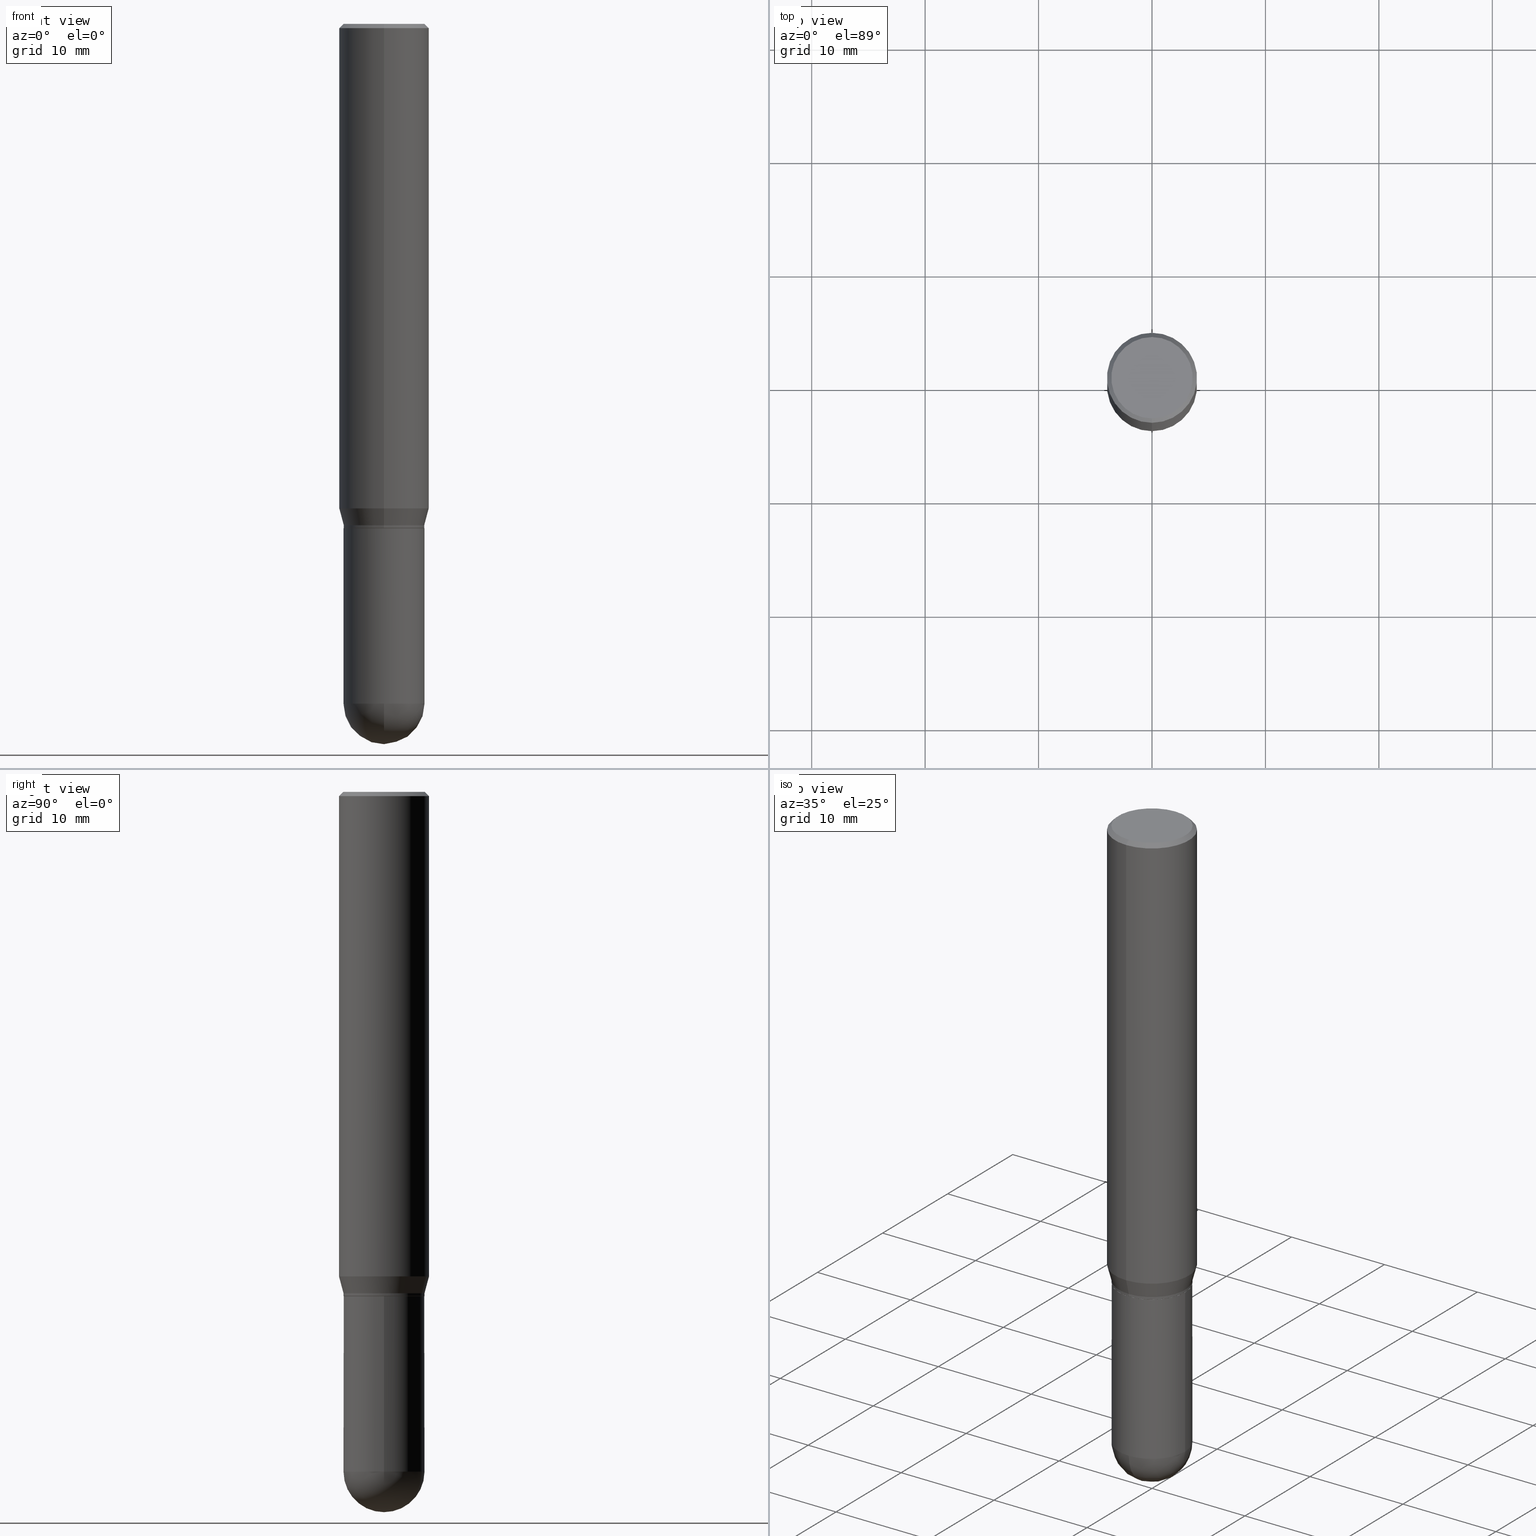
[diagram: canonical four-view strip — front | top / right | iso, engineering-drawing reading convention]
A machine part, canonical four-view strip (front | top / right | iso — engineering-drawing reading convention). The complete STEP part file that produces these views, byte-faithful:
ISO-10303-21;
HEADER;
FILE_DESCRIPTION (( 'STEP AP203' ),
    '1' );
FILE_NAME ('30868.STEP',
    '2024-03-08T15:40:18',
    ( '' ),
    ( '' ),
    'SwSTEP 2.0',
    'SolidWorks 2023',
    '' );
FILE_SCHEMA (( 'CONFIG_CONTROL_DESIGN' ));
ENDSEC;

DATA;
#1 = CARTESIAN_POINT ( 'NONE',  ( 4.112073964147616750E-29, -5.871553085609828097E-15, -1.681593404861546848 ) ) ;
#2 = ADVANCED_FACE ( 'NONE', ( #369 ), #479, .T. ) ;
#3 = ORIENTED_EDGE ( 'NONE', *, *, #374, .F. ) ;
#4 = DIRECTION ( 'NONE',  ( -4.937700262164631661E-15, -0.7071067811865571207, 0.7071067811865379138 ) ) ;
#5 = CIRCLE ( 'NONE', #304, 0.1412499999999999867 ) ;
#6 = FACE_OUTER_BOUND ( 'NONE', #194, .T. ) ;
#7 = CONICAL_SURFACE ( 'NONE', #449, 0.1401000000000000023, 0.7853981633974653764 ) ;
#8 = LENGTH_MEASURE_WITH_UNIT ( LENGTH_MEASURE( 0.02539999999999999897 ), #258 );
#9 = DIRECTION ( 'NONE',  ( -2.445343774695751829E-29, 3.491660391052294645E-15, 1.000000000000000000 ) ) ;
#10 = ADVANCED_FACE ( 'NONE', ( #12 ), #14, .F. ) ;
#11 = PERSON_AND_ORGANIZATION ( #113, #141 ) ;
#12 = FACE_OUTER_BOUND ( 'NONE', #267, .T. ) ;
#13 = PERSON_AND_ORGANIZATION ( #113, #141 ) ;
#14 = PLANE ( 'NONE',  #162 ) ;
#15 = AXIS2_PLACEMENT_3D ( 'NONE', #471, #442, #95 ) ;
#16 = AXIS2_PLACEMENT_3D ( 'NONE', #355, #509, #238 ) ;
#17 = DESIGN_CONTEXT ( 'detailed design', #508, 'design' ) ;
#18 = ORIENTED_EDGE ( 'NONE', *, *, #67, .F. ) ;
#19 = DIRECTION ( 'NONE',  ( -2.445343774695752109E-29, 3.491660391052294645E-15, 1.000000000000000000 ) ) ;
#20 = ORIENTED_EDGE ( 'NONE', *, *, #67, .T. ) ;
#21 = EDGE_CURVE ( 'NONE', #259, #359, #60, .T. ) ;
#22 = ORIENTED_EDGE ( 'NONE', *, *, #417, .F. ) ;
#23 = DIRECTION ( 'NONE',  ( -2.445343774695752109E-29, 3.491660391052294645E-15, 1.000000000000000000 ) ) ;
#24 = CARTESIAN_POINT ( 'NONE',  ( -1.071952812151801215E-15, -0.1562500000000000833, -0.01499999999999942178 ) ) ;
#25 = EDGE_LOOP ( 'NONE', ( #430, #20 ) ) ;
#26 = DIRECTION ( 'NONE',  ( -2.445343774695752109E-29, 3.491660391052294645E-15, 1.000000000000000000 ) ) ;
#27 = ADVANCED_FACE ( 'NONE', ( #182 ), #410, .F. ) ;
#28 = CARTESIAN_POINT ( 'NONE',  ( 3.668015662043620053E-31, -5.237490586578430900E-17, -0.01499999999999996822 ) ) ;
#29 = CARTESIAN_POINT ( 'NONE',  ( 3.668015662043620053E-31, -5.237490586578430900E-17, -0.01499999999999996822 ) ) ;
#30 = AXIS2_PLACEMENT_3D ( 'NONE', #311, #458, #114 ) ;
#31 = AXIS2_PLACEMENT_3D ( 'NONE', #297, #483, #338 ) ;
#32 = EDGE_CURVE ( 'NONE', #144, #89, #224, .T. ) ;
#33 = DIRECTION ( 'NONE',  ( -2.445343774695752109E-29, 3.491660391052294645E-15, 1.000000000000000000 ) ) ;
#34 = CARTESIAN_POINT ( 'NONE',  ( 4.279351605717566121E-29, -6.110405684341516320E-15, -1.750000000000000222 ) ) ;
#35 = LINE ( 'NONE', #506, #58 ) ;
#36 = EDGE_CURVE ( 'NONE', #42, #281, #412, .T. ) ;
#37 = ORIENTED_EDGE ( 'NONE', *, *, #344, .T. ) ;
#38 = CLOSED_SHELL ( 'NONE', ( #414, #318, #210, #354, #106, #218, #129, #177, #27, #10, #2, #161 ) ) ;
#39 = CARTESIAN_POINT ( 'NONE',  ( 9.954703727999429753E-16, 0.1400999999999938961, -1.750000000000000666 ) ) ;
#40 = ORIENTED_EDGE ( 'NONE', *, *, #201, .F. ) ;
#41 = EDGE_CURVE ( 'NONE', #245, #285, #388, .T. ) ;
#42 = VERTEX_POINT ( 'NONE', #407 ) ;
#43 = DIRECTION ( 'NONE',  ( -6.982962677686266711E-15, -1.000000000000000000, 3.885985766236507752E-15 ) ) ;
#44 = ORIENTED_EDGE ( 'NONE', *, *, #459, .F. ) ;
#45 = DIRECTION ( 'NONE',  ( 1.839019923739597160E-15, 0.2588190451025245142, 0.9659258262890673130 ) ) ;
#46 = VERTEX_POINT ( 'NONE', #131 ) ;
#47 = DIRECTION ( 'NONE',  ( -1.000000000000000000, 6.982962677686265922E-15, -4.876176775795935793E-29 ) ) ;
#48 = AXIS2_PLACEMENT_3D ( 'NONE', #394, #512, #464 ) ;
#49 = VERTEX_POINT ( 'NONE', #50 ) ;
#50 = CARTESIAN_POINT ( 'NONE',  ( 1.110223024625197561E-15, 0.1562499999999999445, -0.01500000000000051466 ) ) ;
#51 = ORIENTED_EDGE ( 'NONE', *, *, #329, .F. ) ;
#52 = APPROVAL_ROLE ( '' ) ;
#53 = MANIFOLD_SOLID_BREP ( 'Body-Move/Copy2[1]', #109 ) ;
#54 = DIRECTION ( 'NONE',  ( 2.445343774695751829E-29, -3.491660391052294645E-15, -1.000000000000000000 ) ) ;
#55 = APPROVAL_ROLE ( '' ) ;
#56 = DIRECTION ( 'NONE',  ( -6.982962677686265133E-15, -1.000000000000000000, 3.496765431890256920E-15 ) ) ;
#57 = CIRCLE ( 'NONE', #80, 0.1401000000000000023 ) ;
#58 = VECTOR ( 'NONE', #203, 39.37007874015748143 ) ;
#59 = DIRECTION ( 'NONE',  ( -6.982962677686266711E-15, -1.000000000000000000, 3.885985766236507752E-15 ) ) ;
#60 = CIRCLE ( 'NONE', #351, 0.1562500000000000000 ) ;
#61 = AXIS2_PLACEMENT_3D ( 'NONE', #242, #117, #43 ) ;
#62 = DIRECTION ( 'NONE',  ( -2.445343774695752109E-29, 3.491660391052294645E-15, 1.000000000000000000 ) ) ;
#63 = VERTEX_POINT ( 'NONE', #215 ) ;
#64 = LINE ( 'NONE', #66, #466 ) ;
#65 = EDGE_LOOP ( 'NONE', ( #415, #111, #441, #257 ) ) ;
#66 = CARTESIAN_POINT ( 'NONE',  ( -9.818045524826459157E-16, -0.1406000000000059980, -1.739999999999999547 ) ) ;
#67 = EDGE_CURVE ( 'NONE', #248, #235, #5, .T. ) ;
#68 = CARTESIAN_POINT ( 'NONE',  ( -0.1406000000000000028, -6.174923620442310269E-15, -1.750000000000000222 ) ) ;
#69 = EDGE_CURVE ( 'NONE', #235, #248, #493, .T. ) ;
#70 = MANIFOLD_SOLID_BREP ( 'Body-Move/Copy2[2]', #38 ) ;
#71 = DIRECTION ( 'NONE',  ( 6.982962677686265133E-15, 1.000000000000000000, -3.496765431890256920E-15 ) ) ;
#72 = DIRECTION ( 'NONE',  ( -2.445468806185136877E-29, 3.491481338843145188E-15, 1.000000000000000000 ) ) ;
#73 = CIRCLE ( 'NONE', #30, 0.1562500000000000000 ) ;
#74 = AXIS2_PLACEMENT_3D ( 'NONE', #1, #286, #83 ) ;
#75 = LINE ( 'NONE', #39, #246 ) ;
#76 = DIRECTION ( 'NONE',  ( -1.000000000000000000, 7.105427357601001070E-15, -4.926315508542082329E-29 ) ) ;
#77 = DIRECTION ( 'NONE',  ( -2.445343774695752109E-29, 3.491660391052294645E-15, 1.000000000000000000 ) ) ;
#78 = ADVANCED_FACE ( 'NONE', ( #221 ), #372, .T. ) ;
#79 = ORIENTED_EDGE ( 'NONE', *, *, #507, .T. ) ;
#80 = AXIS2_PLACEMENT_3D ( 'NONE', #227, #62, #183 ) ;
#81 = VECTOR ( 'NONE', #353, 39.37007874015748143 ) ;
#82 = AXIS2_PLACEMENT_3D ( 'NONE', #145, #494, #107 ) ;
#83 = DIRECTION ( 'NONE',  ( -6.982962677686265133E-15, -1.000000000000000000, 3.496765431890256920E-15 ) ) ;
#84 = ORIENTED_EDGE ( 'NONE', *, *, #507, .F. ) ;
#85 = ORIENTED_EDGE ( 'NONE', *, *, #120, .T. ) ;
#86 = APPLICATION_PROTOCOL_DEFINITION ( 'international standard', 'config_control_design', 1994, #366 ) ;
#87 = PLANE ( 'NONE',  #261 ) ;
#88 = CC_DESIGN_PERSON_AND_ORGANIZATION_ASSIGNMENT ( #211, #360, ( #204 ) ) ;
#89 = VERTEX_POINT ( 'NONE', #225 ) ;
#90 = ORIENTED_EDGE ( 'NONE', *, *, #400, .F. ) ;
#91 = CARTESIAN_POINT ( 'NONE',  ( 4.112073964147616750E-29, -5.871553085609828097E-15, -1.681593404861546848 ) ) ;
#92 = DIRECTION ( 'NONE',  ( -6.982962677686265922E-15, -1.000000000000000000, 3.491660391052294645E-15 ) ) ;
#93 = APPROVAL_STATUS ( 'not_yet_approved' ) ;
#94 = ORIENTED_EDGE ( 'NONE', *, *, #201, .T. ) ;
#95 = DIRECTION ( 'NONE',  ( -6.982962677686265922E-15, -1.000000000000000000, 3.899854380677035588E-15 ) ) ;
#96 = LINE ( 'NONE', #214, #477 ) ;
#97 = FACE_OUTER_BOUND ( 'NONE', #342, .T. ) ;
#98 = VECTOR ( 'NONE', #151, 39.37007874015748143 ) ;
#99 = LINE ( 'NONE', #262, #305 ) ;
#100 = AXIS2_PLACEMENT_3D ( 'NONE', #405, #473, #362 ) ;
#101 = CIRCLE ( 'NONE', #387, 0.1405999999999999195 ) ;
#102 = APPROVAL_STATUS ( 'not_yet_approved' ) ;
#103 = FACE_OUTER_BOUND ( 'NONE', #160, .T. ) ;
#104 = VERTEX_POINT ( 'NONE', #292 ) ;
#105 = DIRECTION ( 'NONE',  ( -6.982962677686266711E-15, -1.000000000000000000, 3.885985766236507752E-15 ) ) ;
#106 = ADVANCED_FACE ( 'NONE', ( #128 ), #233, .T. ) ;
#107 = DIRECTION ( 'NONE',  ( -6.982962677686266711E-15, -1.000000000000000000, 3.491660391052295040E-15 ) ) ;
#108 = AXIS2_PLACEMENT_3D ( 'NONE', #130, #291, #438 ) ;
#109 = CLOSED_SHELL ( 'NONE', ( #78, #475, #159, #491, #390 ) ) ;
#110 = AXIS2_PLACEMENT_3D ( 'NONE', #436, #137, #59 ) ;
#111 = ORIENTED_EDGE ( 'NONE', *, *, #408, .T. ) ;
#112 = ORIENTED_EDGE ( 'NONE', *, *, #322, .F. ) ;
#113 = PERSON ( 'UNSPECIFIED', 'UNSPECIFIED', 'UNSPECIFIED', ('UNSPECIFIED'), ('UNSPECIFIED'), ('UNSPECIFIED') ) ;
#114 = DIRECTION ( 'NONE',  ( -6.982962677686265133E-15, -1.000000000000000000, 3.496765431890256920E-15 ) ) ;
#115 = ORIENTED_EDGE ( 'NONE', *, *, #417, .T. ) ;
#116 = DIRECTION ( 'NONE',  ( -6.982962677686265133E-15, -1.000000000000000000, 3.885985766236507752E-15 ) ) ;
#117 = DIRECTION ( 'NONE',  ( -2.445343774695752109E-29, 3.491660391052294645E-15, 1.000000000000000000 ) ) ;
#118 = LINE ( 'NONE', #460, #140 ) ;
#119 = EDGE_LOOP ( 'NONE', ( #392, #320 ) ) ;
#120 = EDGE_CURVE ( 'NONE', #241, #42, #237, .T. ) ;
#121 = CARTESIAN_POINT ( 'NONE',  ( 4.278128933830218313E-29, -6.108659854145990400E-15, -1.749500000000000277 ) ) ;
#122 = FACE_OUTER_BOUND ( 'NONE', #381, .T. ) ;
#123 = AXIS2_PLACEMENT_3D ( 'NONE', #378, #418, #452 ) ;
#124 = LOCAL_TIME ( 10, 40, 18.00000000000000000, #171 ) ;
#125 = AXIS2_PLACEMENT_3D ( 'NONE', #29, #187, #71 ) ;
#126 = PERSON_AND_ORGANIZATION ( #113, #141 ) ;
#127 =( CONVERSION_BASED_UNIT ( 'INCH', #8 ) LENGTH_UNIT ( ) NAMED_UNIT ( #368 ) );
#128 = FACE_OUTER_BOUND ( 'NONE', #294, .T. ) ;
#129 = ADVANCED_FACE ( 'NONE', ( #97 ), #212, .T. ) ;
#130 = CARTESIAN_POINT ( 'NONE',  ( 0.000000000000000000, 0.000000000000000000, 0.000000000000000000 ) ) ;
#131 = CARTESIAN_POINT ( 'NONE',  ( 0.1406000000000000583, -8.155751259403701439E-15, -2.359399999999999942 ) ) ;
#132 = ORIENTED_EDGE ( 'NONE', *, *, #316, .F. ) ;
#133 = CC_DESIGN_APPROVAL ( #420, ( #314 ) ) ;
#134 = CALENDAR_DATE ( 2024, 8, 3 ) ;
#135 = CARTESIAN_POINT ( 'NONE',  ( -7.821174033303123404E-46, 1.116770732450859065E-31, 3.198394481068915622E-17 ) ) ;
#136 = PERSON_AND_ORGANIZATION ( #113, #141 ) ;
#137 = DIRECTION ( 'NONE',  ( -2.445343774695752109E-29, 3.491660391052294645E-15, 1.000000000000000000 ) ) ;
#138 = ORIENTED_EDGE ( 'NONE', *, *, #308, .T. ) ;
#139 = CARTESIAN_POINT ( 'NONE',  ( 9.863434782231850151E-16, 0.1412499999999999867, -4.772050578307920773E-16 ) ) ;
#140 = VECTOR ( 'NONE', #72, 39.37007874015748143 ) ;
#141 = ORGANIZATION ( 'UNSPECIFIED', 'UNSPECIFIED', '' ) ;
#142 = DIRECTION ( 'NONE',  ( -1.807323732225326984E-15, -0.2588190451025177419, 0.9659258262890690894 ) ) ;
#143 = CC_DESIGN_PERSON_AND_ORGANIZATION_ASSIGNMENT ( #13, #325, ( #495 ) ) ;
#144 = VERTEX_POINT ( 'NONE', #252 ) ;
#145 = CARTESIAN_POINT ( 'NONE',  ( 0.000000000000000000, 0.000000000000000000, 0.000000000000000000 ) ) ;
#146 = ORIENTED_EDGE ( 'NONE', *, *, #316, .T. ) ;
#147 = CALENDAR_DATE ( 2024, 8, 3 ) ;
#148 = CARTESIAN_POINT ( 'NONE',  ( 1.038715698305832292E-15, 0.1412499999999999867, -4.612130854254474684E-16 ) ) ;
#149 = ORIENTED_EDGE ( 'NONE', *, *, #383, .T. ) ;
#150 = CIRCLE ( 'NONE', #61, 0.1405999999999999195 ) ;
#151 = DIRECTION ( 'NONE',  ( -2.445343774695752109E-29, 3.491660391052294645E-15, 1.000000000000000000 ) ) ;
#152 = VECTOR ( 'NONE', #309, 39.37007874015748143 ) ;
#153 = ORIENTED_EDGE ( 'NONE', *, *, #41, .F. ) ;
#154 = CARTESIAN_POINT ( 'NONE',  ( 0.000000000000000000, 0.000000000000000000, 0.000000000000000000 ) ) ;
#155 = CYLINDRICAL_SURFACE ( 'NONE', #16, 0.1406000000000000028 ) ;
#156 = EDGE_LOOP ( 'NONE', ( #198, #270, #496, #386 ) ) ;
#157 = CYLINDRICAL_SURFACE ( 'NONE', #303, 0.1405999999999999195 ) ;
#158 = AXIS2_PLACEMENT_3D ( 'NONE', #164, #323, #283 ) ;
#159 = ADVANCED_FACE ( 'NONE', ( #486 ), #87, .F. ) ;
#160 = EDGE_LOOP ( 'NONE', ( #456, #409, #313, #451 ) ) ;
#161 = ADVANCED_FACE ( 'NONE', ( #6 ), #172, .T. ) ;
#162 = AXIS2_PLACEMENT_3D ( 'NONE', #176, #9, #92 ) ;
#163 = DIRECTION ( 'NONE',  ( -2.445343774695752109E-29, 3.491660391052294645E-15, 1.000000000000000000 ) ) ;
#164 = CARTESIAN_POINT ( 'NONE',  ( 5.757815463287349061E-29, -8.255019604862529009E-15, -2.359399999999999942 ) ) ;
#165 = EDGE_LOOP ( 'NONE', ( #189, #207, #263, #115 ) ) ;
#166 = EDGE_CURVE ( 'NONE', #46, #245, #416, .T. ) ;
#167 = CIRCLE ( 'NONE', #287, 0.1401000000000000023 ) ;
#168 = CC_DESIGN_APPROVAL ( #199, ( #419 ) ) ;
#169 = AXIS2_PLACEMENT_3D ( 'NONE', #174, #333, #295 ) ;
#170 = AXIS2_PLACEMENT_3D ( 'NONE', #181, #365, #439 ) ;
#171 = COORDINATED_UNIVERSAL_TIME_OFFSET ( 5, 0, .BEHIND. ) ;
#172 = CYLINDRICAL_SURFACE ( 'NONE', #82, 0.1405999999999999195 ) ;
#173 = ORIENTED_EDGE ( 'NONE', *, *, #510, .T. ) ;
#174 = CARTESIAN_POINT ( 'NONE',  ( 4.279570410823989044E-29, -6.110092342975505460E-15, -1.750000000000000222 ) ) ;
#175 = APPROVAL_STATUS ( 'not_yet_approved' ) ;
#176 = CARTESIAN_POINT ( 'NONE',  ( 4.279351605717566121E-29, -6.110405684341516320E-15, -1.750000000000000222 ) ) ;
#177 = ADVANCED_FACE ( 'NONE', ( #307 ), #302, .T. ) ;
#178 = APPROVAL_DATE_TIME ( #370, #199 ) ;
#179 = EDGE_LOOP ( 'NONE', ( #90, #149, #173, #44 ) ) ;
#180 = AXIS2_PLACEMENT_3D ( 'NONE', #154, #77, #389 ) ;
#181 = CARTESIAN_POINT ( 'NONE',  ( 0.000000000000000000, 0.000000000000000000, 0.000000000000000000 ) ) ;
#182 = FACE_OUTER_BOUND ( 'NONE', #25, .T. ) ;
#183 = DIRECTION ( 'NONE',  ( -6.982962677686265922E-15, -1.000000000000000000, 3.899854380677035588E-15 ) ) ;
#184 = EDGE_LOOP ( 'NONE', ( #437, #373, #3, #275 ) ) ;
#185 = APPROVAL_PERSON_ORGANIZATION ( #379, #282, #347 ) ;
#186 = ORIENTED_EDGE ( 'NONE', *, *, #448, .F. ) ;
#187 = DIRECTION ( 'NONE',  ( 2.445343774695752109E-29, -3.491660391052294645E-15, -1.000000000000000000 ) ) ;
#188 = EDGE_CURVE ( 'NONE', #144, #273, #421, .T. ) ;
#189 = ORIENTED_EDGE ( 'NONE', *, *, #255, .F. ) ;
#190 = PRODUCT_DEFINITION_SHAPE ( 'NONE', 'NONE',  #314 ) ;
#191 = CARTESIAN_POINT ( 'NONE',  ( 0.1406000000000000028, -7.091896895458194566E-15, -1.750000000000000222 ) ) ;
#192 = ORIENTED_EDGE ( 'NONE', *, *, #501, .F. ) ;
#193 = DIRECTION ( 'NONE',  ( 6.982962677686265133E-15, 1.000000000000000000, -3.496765431890256920E-15 ) ) ;
#194 = EDGE_LOOP ( 'NONE', ( #186, #209, #453, #132 ) ) ;
#195 = DIRECTION ( 'NONE',  ( 1.000000000000000000, -6.982962677686270655E-15, 0.000000000000000000 ) ) ;
#196 = AXIS2_PLACEMENT_3D ( 'NONE', #380, #382, #105 ) ;
#197 = CARTESIAN_POINT ( 'NONE',  ( -1.091087918388437956E-15, -0.1562500000000058842, -1.681593404861546404 ) ) ;
#198 = ORIENTED_EDGE ( 'NONE', *, *, #501, .T. ) ;
#199 = APPROVAL ( #93, 'UNSPECIFIED' ) ;
#200 = CARTESIAN_POINT ( 'NONE',  ( 5.757815463287349061E-29, -8.255019604862529009E-15, -2.359399999999999942 ) ) ;
#201 = EDGE_CURVE ( 'NONE', #46, #42, #222, .T. ) ;
#202 = ORIENTED_EDGE ( 'NONE', *, *, #228, .T. ) ;
#203 = DIRECTION ( 'NONE',  ( -2.445343774695752109E-29, 3.491660391052294645E-15, 1.000000000000000000 ) ) ;
#204 = SECURITY_CLASSIFICATION ( '', '', #398 ) ;
#205 = FACE_OUTER_BOUND ( 'NONE', #65, .T. ) ;
#206 = CC_DESIGN_DATE_AND_TIME_ASSIGNMENT ( #406, #251, ( #314 ) ) ;
#207 = ORIENTED_EDGE ( 'NONE', *, *, #69, .F. ) ;
#208 = LINE ( 'NONE', #440, #356 ) ;
#209 = ORIENTED_EDGE ( 'NONE', *, *, #459, .T. ) ;
#210 = ADVANCED_FACE ( 'NONE', ( #229 ), #336, .T. ) ;
#211 = PERSON_AND_ORGANIZATION ( #113, #141 ) ;
#212 = CYLINDRICAL_SURFACE ( 'NONE', #480, 0.1562500000000000000 ) ;
#213 = EDGE_LOOP ( 'NONE', ( #485, #349, #284, #469, #319 ) ) ;
#214 = CARTESIAN_POINT ( 'NONE',  ( -9.783130711438031058E-16, -0.1401000000000061085, -1.749999999999999556 ) ) ;
#215 = CARTESIAN_POINT ( 'NONE',  ( 9.972467296393428329E-16, 0.1400999999999938961, -1.750000000000000666 ) ) ;
#216 = APPROVAL_DATE_TIME ( #476, #420 ) ;
#217 = DIRECTION ( 'NONE',  ( -2.445343774695752109E-29, 3.491660391052294645E-15, 1.000000000000000000 ) ) ;
#218 = ADVANCED_FACE ( 'NONE', ( #498 ), #361, .T. ) ;
#219 = CALENDAR_DATE ( 2024, 8, 3 ) ;
#220 = ORIENTED_EDGE ( 'NONE', *, *, #310, .T. ) ;
#221 = FACE_OUTER_BOUND ( 'NONE', #488, .T. ) ;
#222 = CIRCLE ( 'NONE', #123, 0.1406000000000000305 ) ;
#223 = CIRCLE ( 'NONE', #511, 0.1405999999999999195 ) ;
#224 = CIRCLE ( 'NONE', #31, 0.1405999999999999195 ) ;
#225 = CARTESIAN_POINT ( 'NONE',  ( 9.990230864787432822E-16, 0.1405999999999938410, -1.749500000000000721 ) ) ;
#226 = APPROVAL_DATE_TIME ( #454, #282 ) ;
#227 = CARTESIAN_POINT ( 'NONE',  ( 4.279351605717566121E-29, -6.110405684341516320E-15, -1.750000000000000222 ) ) ;
#228 = EDGE_CURVE ( 'NONE', #273, #359, #64, .T. ) ;
#229 = FACE_OUTER_BOUND ( 'NONE', #396, .T. ) ;
#230 = CARTESIAN_POINT ( 'NONE',  ( 0.1406000000000000028, -9.818045524826893030E-16, 6.855904546769086274E-30 ) ) ;
#231 = CARTESIAN_POINT ( 'NONE',  ( 4.279570410823989044E-29, -6.110092342975505460E-15, -1.750000000000000222 ) ) ;
#232 = DIRECTION ( 'NONE',  ( -2.445468806185136597E-29, 3.491481338843145583E-15, 1.000000000000000000 ) ) ;
#233 = CONICAL_SURFACE ( 'NONE', #110, 0.1405999999999999195, 0.2617993877991497964 ) ;
#234 = CARTESIAN_POINT ( 'NONE',  ( 9.990230864787002893E-16, 0.1405999999999999195, -4.909274509819523981E-16 ) ) ;
#235 = VERTEX_POINT ( 'NONE', #148 ) ;
#236 = LOCAL_TIME ( 10, 40, 18.00000000000000000, #367 ) ;
#237 = CIRCLE ( 'NONE', #395, 0.1406000000000000860 ) ;
#238 = DIRECTION ( 'NONE',  ( 1.000000000000000000, -6.982962677686268288E-15, 4.876176775795936353E-29 ) ) ;
#239 = ORIENTED_EDGE ( 'NONE', *, *, #383, .F. ) ;
#240 = SPHERICAL_SURFACE ( 'NONE', #158, 0.1406000000000000860 ) ;
#241 = VERTEX_POINT ( 'NONE', #266 ) ;
#242 = CARTESIAN_POINT ( 'NONE',  ( 4.254898167970608843E-29, -6.075489080430993180E-15, -1.739999999999999991 ) ) ;
#243 = EDGE_LOOP ( 'NONE', ( #84, #146, #202, #472 ) ) ;
#244 = LOCAL_TIME ( 10, 40, 18.00000000000000000, #489 ) ;
#245 = VERTEX_POINT ( 'NONE', #191 ) ;
#246 = VECTOR ( 'NONE', #391, 39.37007874015748143 ) ;
#247 = FACE_OUTER_BOUND ( 'NONE', #156, .T. ) ;
#248 = VERTEX_POINT ( 'NONE', #343 ) ;
#249 = PERSON_AND_ORGANIZATION ( #113, #141 ) ;
#250 = CARTESIAN_POINT ( 'NONE',  ( 9.818045524827319015E-16, 0.1405999999999938965, -1.750000000000000666 ) ) ;
#251 = DATE_TIME_ROLE ( 'creation_date' ) ;
#252 = CARTESIAN_POINT ( 'NONE',  ( -9.818045524826451268E-16, -0.1406000000000059702, -1.749499999999999833 ) ) ;
#253 = CARTESIAN_POINT ( 'NONE',  ( -7.821174033303123404E-46, 1.116770732450859065E-31, 3.198394481068915622E-17 ) ) ;
#254 = PERSON_AND_ORGANIZATION_ROLE ( 'creator' ) ;
#255 = EDGE_CURVE ( 'NONE', #248, #104, #345, .T. ) ;
#256 = DIRECTION ( 'NONE',  ( -2.445343774695752109E-29, 3.491660391052294645E-15, 1.000000000000000000 ) ) ;
#257 = ORIENTED_EDGE ( 'NONE', *, *, #36, .F. ) ;
#258 =( LENGTH_UNIT ( ) NAMED_UNIT ( * ) SI_UNIT ( $, .METRE. ) );
#259 = VERTEX_POINT ( 'NONE', #352 ) ;
#260 = DIRECTION ( 'NONE',  ( 6.982962677686265922E-15, 1.000000000000000000, -3.491660391052294645E-15 ) ) ;
#261 = AXIS2_PLACEMENT_3D ( 'NONE', #250, #399, #47 ) ;
#262 = CARTESIAN_POINT ( 'NONE',  ( 1.091087918388479371E-15, 0.1562499999999999445, -0.01500000000000051466 ) ) ;
#263 = ORIENTED_EDGE ( 'NONE', *, *, #322, .T. ) ;
#264 = SHAPE_DEFINITION_REPRESENTATION ( #190, #474 ) ;
#265 = ORIENTED_EDGE ( 'NONE', *, *, #21, .T. ) ;
#266 = CARTESIAN_POINT ( 'NONE',  ( 6.107660196449910766E-29, -8.737312614105869844E-15, -2.500000000000000000 ) ) ;
#267 = EDGE_LOOP ( 'NONE', ( #51, #239 ) ) ;
#268 = CC_DESIGN_PERSON_AND_ORGANIZATION_ASSIGNMENT ( #136, #443, ( #419 ) ) ;
#269 = DIRECTION ( 'NONE',  ( 2.445343774695752109E-29, -3.491660391052294645E-15, -1.000000000000000000 ) ) ;
#270 = ORIENTED_EDGE ( 'NONE', *, *, #487, .T. ) ;
#271 = LOCAL_TIME ( 10, 40, 18.00000000000000000, #327 ) ;
#272 = CARTESIAN_POINT ( 'NONE',  ( -0.1406000000000000583, -6.174923620442310269E-15, -2.359399999999999942 ) ) ;
#273 = VERTEX_POINT ( 'NONE', #455 ) ;
#274 = CARTESIAN_POINT ( 'NONE',  ( 4.254898167970608843E-29, -6.075489080430993180E-15, -1.739999999999999991 ) ) ;
#275 = ORIENTED_EDGE ( 'NONE', *, *, #188, .F. ) ;
#276 = DIRECTION ( 'NONE',  ( -2.445343774695752109E-29, 3.491660391052294645E-15, 1.000000000000000000 ) ) ;
#277 = CC_DESIGN_PERSON_AND_ORGANIZATION_ASSIGNMENT ( #468, #337, ( #419 ) ) ;
#278 = CC_DESIGN_APPROVAL ( #282, ( #204 ) ) ;
#279 = CARTESIAN_POINT ( 'NONE',  ( 1.054623055551970126E-15, 0.1405999999999938410, -1.740000000000000657 ) ) ;
#280 = DIRECTION ( 'NONE',  ( -6.982962677686266711E-15, -1.000000000000000000, 3.491660391052295040E-15 ) ) ;
#281 = VERTEX_POINT ( 'NONE', #272 ) ;
#282 = APPROVAL ( #102, 'UNSPECIFIED' ) ;
#283 = DIRECTION ( 'NONE',  ( 6.982962677686265922E-15, 1.000000000000000000, -3.885985766236502230E-15 ) ) ;
#284 = ORIENTED_EDGE ( 'NONE', *, *, #339, .T. ) ;
#285 = VERTEX_POINT ( 'NONE', #68 ) ;
#286 = DIRECTION ( 'NONE',  ( -2.445343774695752109E-29, 3.491660391052294645E-15, 1.000000000000000000 ) ) ;
#287 = AXIS2_PLACEMENT_3D ( 'NONE', #34, #163, #321 ) ;
#288 = CIRCLE ( 'NONE', #424, 0.1406000000000000028 ) ;
#289 = CALENDAR_DATE ( 2024, 8, 3 ) ;
#290 = ORIENTED_EDGE ( 'NONE', *, *, #36, .T. ) ;
#291 = DIRECTION ( 'NONE',  ( 0.000000000000000000, 0.000000000000000000, 1.000000000000000000 ) ) ;
#292 = CARTESIAN_POINT ( 'NONE',  ( -1.091087918388478779E-15, -0.1562500000000000833, -0.01499999999999942178 ) ) ;
#293 = EDGE_CURVE ( 'NONE', #281, #484, #431, .T. ) ;
#294 = EDGE_LOOP ( 'NONE', ( #371, #79, #192, #364 ) ) ;
#295 = DIRECTION ( 'NONE',  ( 1.000000000000000000, -6.982962677686265133E-15, 0.000000000000000000 ) ) ;
#296 = LOCAL_TIME ( 10, 40, 18.00000000000000000, #482 ) ;
#297 = CARTESIAN_POINT ( 'NONE',  ( 4.278128933830218313E-29, -6.108659854145990400E-15, -1.749500000000000277 ) ) ;
#298 = PRODUCT_RELATED_PRODUCT_CATEGORY ( 'detail', '', ( #495 ) ) ;
#299 = CARTESIAN_POINT ( 'NONE',  ( 5.757815463287349061E-29, -8.255019604862529009E-15, -2.359399999999999942 ) ) ;
#300 = DIRECTION ( 'NONE',  ( -2.445343774695752109E-29, 3.491660391052294645E-15, 1.000000000000000000 ) ) ;
#301 = EDGE_CURVE ( 'NONE', #285, #245, #288, .T. ) ;
#302 = CONICAL_SURFACE ( 'NONE', #350, 0.1562500000000000000, 0.7853981633974485010 ) ;
#303 = AXIS2_PLACEMENT_3D ( 'NONE', #461, #276, #280 ) ;
#304 = AXIS2_PLACEMENT_3D ( 'NONE', #253, #217, #478 ) ;
#305 = VECTOR ( 'NONE', #413, 39.37007874015748143 ) ;
#306 = DIRECTION ( 'NONE',  ( 1.000000000000000000, -6.982962677686265133E-15, 0.000000000000000000 ) ) ;
#307 = FACE_OUTER_BOUND ( 'NONE', #165, .T. ) ;
#308 = EDGE_CURVE ( 'NONE', #359, #104, #502, .T. ) ;
#309 = DIRECTION ( 'NONE',  ( -4.851104656540965064E-15, -0.7071067811865501263, -0.7071067811865449082 ) ) ;
#310 = EDGE_CURVE ( 'NONE', #104, #49, #73, .T. ) ;
#311 = CARTESIAN_POINT ( 'NONE',  ( 3.668015662043620053E-31, -5.237490586578430900E-17, -0.01499999999999996822 ) ) ;
#312 = CIRCLE ( 'NONE', #375, 0.1406000000000000860 ) ;
#313 = ORIENTED_EDGE ( 'NONE', *, *, #32, .F. ) ;
#314 = PRODUCT_DEFINITION ( 'UNKNOWN', '', #419, #17 ) ;
#315 = DIRECTION ( 'NONE',  ( -2.445343774695752109E-29, 3.491660391052294645E-15, 1.000000000000000000 ) ) ;
#316 = EDGE_CURVE ( 'NONE', #463, #273, #101, .T. ) ;
#317 = DIRECTION ( 'NONE',  ( -7.105427357601001859E-15, -1.000000000000000000, 0.000000000000000000 ) ) ;
#318 = ADVANCED_FACE ( 'NONE', ( #103 ), #7, .T. ) ;
#319 = ORIENTED_EDGE ( 'NONE', *, *, #301, .F. ) ;
#320 = ORIENTED_EDGE ( 'NONE', *, *, #301, .T. ) ;
#321 = DIRECTION ( 'NONE',  ( -6.982962677686265922E-15, -1.000000000000000000, 3.899854380677035588E-15 ) ) ;
#322 = EDGE_CURVE ( 'NONE', #235, #49, #99, .T. ) ;
#323 = DIRECTION ( 'NONE',  ( -1.000000000000000000, 6.982962677686265922E-15, -4.883557194083112340E-29 ) ) ;
#324 = ORIENTED_EDGE ( 'NONE', *, *, #339, .F. ) ;
#325 = PERSON_AND_ORGANIZATION_ROLE ( 'design_owner' ) ;
#326 = VECTOR ( 'NONE', #26, 39.37007874015748143 ) ;
#327 = COORDINATED_UNIVERSAL_TIME_OFFSET ( 5, 0, .BEHIND. ) ;
#328 = DIRECTION ( 'NONE',  ( -6.982962677686265922E-15, -1.000000000000000000, 3.491660391052294645E-15 ) ) ;
#329 = EDGE_CURVE ( 'NONE', #499, #63, #57, .T. ) ;
#330 =( NAMED_UNIT ( * ) SI_UNIT ( $, .STERADIAN. ) SOLID_ANGLE_UNIT ( ) );
#331 = DIRECTION ( 'NONE',  ( -2.445343774695752109E-29, 3.491660391052294645E-15, 1.000000000000000000 ) ) ;
#332 =( NAMED_UNIT ( * ) PLANE_ANGLE_UNIT ( ) SI_UNIT ( $, .RADIAN. ) );
#333 = DIRECTION ( 'NONE',  ( -2.445468806185136597E-29, 3.491481338843145583E-15, 1.000000000000000000 ) ) ;
#334 = CIRCLE ( 'NONE', #74, 0.1562500000000000000 ) ;
#335 = CC_DESIGN_PERSON_AND_ORGANIZATION_ASSIGNMENT ( #249, #254, ( #314 ) ) ;
#336 = CONICAL_SURFACE ( 'NONE', #125, 0.1562500000000000000, 0.7853981633974485010 ) ;
#337 = PERSON_AND_ORGANIZATION_ROLE ( 'creator' ) ;
#338 = DIRECTION ( 'NONE',  ( -6.982962677686265133E-15, -1.000000000000000000, 3.885985766236507752E-15 ) ) ;
#339 = EDGE_CURVE ( 'NONE', #484, #46, #457, .T. ) ;
#340 = DIRECTION ( 'NONE',  ( -6.982962677686265133E-15, -1.000000000000000000, 3.491660391052295040E-15 ) ) ;
#341 = CARTESIAN_POINT ( 'NONE',  ( -9.818045524826885142E-16, -0.1405999999999999195, 4.909274509819523981E-16 ) ) ;
#342 = EDGE_LOOP ( 'NONE', ( #435, #265, #138, #22 ) ) ;
#343 = CARTESIAN_POINT ( 'NONE',  ( -1.020499077168515012E-15, -0.1412499999999999867, 5.251809750468258055E-16 ) ) ;
#344 = EDGE_CURVE ( 'NONE', #281, #285, #118, .T. ) ;
#345 = LINE ( 'NONE', #24, #152 ) ;
#346 = ORIENTED_EDGE ( 'NONE', *, *, #255, .T. ) ;
#347 = APPROVAL_ROLE ( '' ) ;
#348 = CARTESIAN_POINT ( 'NONE',  ( 5.769839101313211634E-29, -8.237801070866517629E-15, -2.359399999999999942 ) ) ;
#349 = ORIENTED_EDGE ( 'NONE', *, *, #293, .T. ) ;
#350 = AXIS2_PLACEMENT_3D ( 'NONE', #28, #269, #193 ) ;
#351 = AXIS2_PLACEMENT_3D ( 'NONE', #91, #331, #56 ) ;
#352 = CARTESIAN_POINT ( 'NONE',  ( 1.110223024625197561E-15, 0.1562499999999941436, -1.681593404861547514 ) ) ;
#353 = DIRECTION ( 'NONE',  ( -2.445343774695752109E-29, 3.491660391052294645E-15, 1.000000000000000000 ) ) ;
#354 = ADVANCED_FACE ( 'NONE', ( #247 ), #429, .T. ) ;
#355 = CARTESIAN_POINT ( 'NONE',  ( 0.000000000000000000, 0.000000000000000000, 0.000000000000000000 ) ) ;
#356 = VECTOR ( 'NONE', #45, 39.37007874015748143 ) ;
#357 = CARTESIAN_POINT ( 'NONE',  ( -9.783130711438031058E-16, -0.1401000000000061085, -1.749999999999999556 ) ) ;
#358 = CARTESIAN_POINT ( 'NONE',  ( 3.668015662043620053E-31, -5.237490586578430900E-17, -0.01499999999999996822 ) ) ;
#359 = VERTEX_POINT ( 'NONE', #197 ) ;
#360 = PERSON_AND_ORGANIZATION_ROLE ( 'classification_officer' ) ;
#361 = CONICAL_SURFACE ( 'NONE', #196, 0.1405999999999999195, 0.2617993877991497964 ) ;
#362 = DIRECTION ( 'NONE',  ( 1.000000000000000000, -6.982962677686270655E-15, 0.000000000000000000 ) ) ;
#363 = APPROVAL_PERSON_ORGANIZATION ( #126, #420, #52 ) ;
#364 = ORIENTED_EDGE ( 'NONE', *, *, #228, .F. ) ;
#365 = DIRECTION ( 'NONE',  ( -2.445468806185136597E-29, 3.491481338843145583E-15, 1.000000000000000000 ) ) ;
#366 = APPLICATION_CONTEXT ( 'configuration controlled 3d designs of mechanical parts and assemblies' ) ;
#367 = COORDINATED_UNIVERSAL_TIME_OFFSET ( 5, 0, .BEHIND. ) ;
#368 = DIMENSIONAL_EXPONENTS ( 1.000000000000000000, 0.000000000000000000, 0.000000000000000000, 0.000000000000000000, 0.000000000000000000, 0.000000000000000000, 0.000000000000000000 ) ;
#369 = FACE_OUTER_BOUND ( 'NONE', #179, .T. ) ;
#370 = DATE_AND_TIME ( #219, #296 ) ;
#371 = ORIENTED_EDGE ( 'NONE', *, *, #374, .T. ) ;
#372 = CYLINDRICAL_SURFACE ( 'NONE', #170, 0.1406000000000000028 ) ;
#373 = ORIENTED_EDGE ( 'NONE', *, *, #448, .T. ) ;
#374 = EDGE_CURVE ( 'NONE', #273, #463, #150, .T. ) ;
#375 = AXIS2_PLACEMENT_3D ( 'NONE', #200, #76, #317 ) ;
#376 = DATE_AND_TIME ( #470, #271 ) ;
#377 = CARTESIAN_POINT ( 'NONE',  ( 0.000000000000000000, 0.000000000000000000, 0.000000000000000000 ) ) ;
#378 = CARTESIAN_POINT ( 'NONE',  ( 5.769839101313211634E-29, -8.237801070866517629E-15, -2.359399999999999942 ) ) ;
#379 = PERSON_AND_ORGANIZATION ( #113, #141 ) ;
#380 = CARTESIAN_POINT ( 'NONE',  ( 4.254898167970608843E-29, -6.075489080430993180E-15, -1.739999999999999991 ) ) ;
#381 = EDGE_LOOP ( 'NONE', ( #500, #85, #40, #324 ) ) ;
#382 = DIRECTION ( 'NONE',  ( -2.445343774695752109E-29, 3.491660391052294645E-15, 1.000000000000000000 ) ) ;
#383 = EDGE_CURVE ( 'NONE', #63, #499, #167, .T. ) ;
#384 = DIRECTION ( 'NONE',  ( -2.445468806185136597E-29, 3.491481338843145583E-15, 1.000000000000000000 ) ) ;
#385 = CARTESIAN_POINT ( 'NONE',  ( -1.091087918388478976E-15, -0.1562500000000000000, 5.455719361019211000E-16 ) ) ;
#386 = ORIENTED_EDGE ( 'NONE', *, *, #308, .F. ) ;
#387 = AXIS2_PLACEMENT_3D ( 'NONE', #274, #23, #422 ) ;
#388 = CIRCLE ( 'NONE', #169, 0.1406000000000000028 ) ;
#389 = DIRECTION ( 'NONE',  ( -6.982962677686265133E-15, -1.000000000000000000, 3.491660391052295040E-15 ) ) ;
#390 = ADVANCED_FACE ( 'NONE', ( #423 ), #155, .T. ) ;
#391 = DIRECTION ( 'NONE',  ( 5.024295867788147587E-15, 0.7071067811865620056, 0.7071067811865330288 ) ) ;
#392 = ORIENTED_EDGE ( 'NONE', *, *, #41, .T. ) ;
#393 = CARTESIAN_POINT ( 'NONE',  ( -9.990230864786434913E-16, -0.1406000000000083017, -2.359399999999999498 ) ) ;
#394 = CARTESIAN_POINT ( 'NONE',  ( 5.757815463287349061E-29, -8.255019604862529009E-15, -2.359399999999999942 ) ) ;
#395 = AXIS2_PLACEMENT_3D ( 'NONE', #299, #402, #444 ) ;
#396 = EDGE_LOOP ( 'NONE', ( #18, #346, #220, #112 ) ) ;
#397 = FACE_OUTER_BOUND ( 'NONE', #184, .T. ) ;
#398 = SECURITY_CLASSIFICATION_LEVEL ( 'unclassified' ) ;
#399 = DIRECTION ( 'NONE',  ( 2.438088387897960049E-29, -3.491481338843145188E-15, -1.000000000000000000 ) ) ;
#400 = EDGE_CURVE ( 'NONE', #63, #89, #75, .T. ) ;
#401 = APPLICATION_PROTOCOL_DEFINITION ( 'international standard', 'config_control_design', 1994, #508 ) ;
#402 = DIRECTION ( 'NONE',  ( 1.000000000000000000, -6.982962677686265922E-15, 4.883557194083112340E-29 ) ) ;
#403 = MECHANICAL_CONTEXT ( 'NONE', #366, 'mechanical' ) ;
#404 = CC_DESIGN_DATE_AND_TIME_ASSIGNMENT ( #376, #497, ( #204 ) ) ;
#405 = CARTESIAN_POINT ( 'NONE',  ( 5.769839101313211634E-29, -8.237801070866517629E-15, -2.359399999999999942 ) ) ;
#406 = DATE_AND_TIME ( #134, #236 ) ;
#407 = CARTESIAN_POINT ( 'NONE',  ( 9.818045524827470871E-16, 0.1405999999999918426, -2.359400000000000386 ) ) ;
#408 = EDGE_CURVE ( 'NONE', #241, #484, #312, .T. ) ;
#409 = ORIENTED_EDGE ( 'NONE', *, *, #400, .T. ) ;
#410 = PLANE ( 'NONE',  #434 ) ;
#411 = VECTOR ( 'NONE', #450, 39.37007874015748143 ) ;
#412 = CIRCLE ( 'NONE', #100, 0.1406000000000000305 ) ;
#413 = DIRECTION ( 'NONE',  ( 4.937700262164548831E-15, 0.7071067811865452413, -0.7071067811865497932 ) ) ;
#414 = ADVANCED_FACE ( 'NONE', ( #397 ), #157, .T. ) ;
#415 = ORIENTED_EDGE ( 'NONE', *, *, #120, .F. ) ;
#416 = LINE ( 'NONE', #230, #411 ) ;
#417 = EDGE_CURVE ( 'NONE', #49, #104, #432, .T. ) ;
#418 = DIRECTION ( 'NONE',  ( -2.445468806185136597E-29, 3.491481338843145583E-15, 1.000000000000000000 ) ) ;
#419 = PRODUCT_DEFINITION_FORMATION_WITH_SPECIFIED_SOURCE ( 'ANY', '', #495, .NOT_KNOWN. ) ;
#420 = APPROVAL ( #175, 'UNSPECIFIED' ) ;
#421 = LINE ( 'NONE', #341, #326 ) ;
#422 = DIRECTION ( 'NONE',  ( -6.982962677686266711E-15, -1.000000000000000000, 3.885985766236507752E-15 ) ) ;
#423 = FACE_OUTER_BOUND ( 'NONE', #213, .T. ) ;
#424 = AXIS2_PLACEMENT_3D ( 'NONE', #231, #384, #306 ) ;
#425 = APPROVAL_PERSON_ORGANIZATION ( #11, #199, #55 ) ;
#426 = DIRECTION ( 'NONE',  ( -6.982962677686265133E-15, -1.000000000000000000, 3.496765431890256920E-15 ) ) ;
#427 = LINE ( 'NONE', #234, #81 ) ;
#428 = ORIENTED_EDGE ( 'NONE', *, *, #166, .F. ) ;
#429 = CYLINDRICAL_SURFACE ( 'NONE', #180, 0.1562500000000000000 ) ;
#430 = ORIENTED_EDGE ( 'NONE', *, *, #69, .T. ) ;
#431 = CIRCLE ( 'NONE', #503, 0.1406000000000000305 ) ;
#432 = CIRCLE ( 'NONE', #467, 0.1562500000000000000 ) ;
#433 = DIRECTION ( 'NONE',  ( 1.000000000000000000, -6.982962677686270655E-15, 0.000000000000000000 ) ) ;
#434 = AXIS2_PLACEMENT_3D ( 'NONE', #139, #54, #260 ) ;
#435 = ORIENTED_EDGE ( 'NONE', *, *, #487, .F. ) ;
#436 = CARTESIAN_POINT ( 'NONE',  ( 4.254898167970608843E-29, -6.075489080430993180E-15, -1.739999999999999991 ) ) ;
#437 = ORIENTED_EDGE ( 'NONE', *, *, #32, .T. ) ;
#438 = DIRECTION ( 'NONE',  ( 1.000000000000000000, 0.000000000000000000, 0.000000000000000000 ) ) ;
#439 = DIRECTION ( 'NONE',  ( 1.000000000000000000, -6.982962677686268288E-15, 4.876176775795936353E-29 ) ) ;
#440 = CARTESIAN_POINT ( 'NONE',  ( 9.990230864787428877E-16, 0.1405999999999938410, -1.740000000000000657 ) ) ;
#441 = ORIENTED_EDGE ( 'NONE', *, *, #293, .F. ) ;
#442 = DIRECTION ( 'NONE',  ( -2.445343774695752109E-29, 3.491660391052294645E-15, 1.000000000000000000 ) ) ;
#443 = PERSON_AND_ORGANIZATION_ROLE ( 'design_supplier' ) ;
#444 = DIRECTION ( 'NONE',  ( 6.982962677686266711E-15, 1.000000000000000000, 0.000000000000000000 ) ) ;
#445 = DIRECTION ( 'NONE',  ( -6.982962677686265922E-15, -1.000000000000000000, 3.899854380677035588E-15 ) ) ;
#446 = AXIS2_PLACEMENT_3D ( 'NONE', #490, #462, #433 ) ;
#447 = CC_DESIGN_SECURITY_CLASSIFICATION ( #204, ( #419 ) ) ;
#448 = EDGE_CURVE ( 'NONE', #89, #463, #427, .T. ) ;
#449 = AXIS2_PLACEMENT_3D ( 'NONE', #505, #300, #445 ) ;
#450 = DIRECTION ( 'NONE',  ( -2.445468806185136877E-29, 3.491481338843145188E-15, 1.000000000000000000 ) ) ;
#451 = ORIENTED_EDGE ( 'NONE', *, *, #510, .F. ) ;
#452 = DIRECTION ( 'NONE',  ( 1.000000000000000000, -6.982962677686270655E-15, 0.000000000000000000 ) ) ;
#453 = ORIENTED_EDGE ( 'NONE', *, *, #188, .T. ) ;
#454 = DATE_AND_TIME ( #147, #244 ) ;
#455 = CARTESIAN_POINT ( 'NONE',  ( -9.818045524826459157E-16, -0.1406000000000059980, -1.739999999999999547 ) ) ;
#456 = ORIENTED_EDGE ( 'NONE', *, *, #329, .T. ) ;
#457 = CIRCLE ( 'NONE', #446, 0.1406000000000000305 ) ;
#458 = DIRECTION ( 'NONE',  ( -2.445343774695752109E-29, 3.491660391052294645E-15, 1.000000000000000000 ) ) ;
#459 = EDGE_CURVE ( 'NONE', #89, #144, #223, .T. ) ;
#460 = CARTESIAN_POINT ( 'NONE',  ( -0.1406000000000000028, 9.990230864787008809E-16, -6.916022736898399140E-30 ) ) ;
#461 = CARTESIAN_POINT ( 'NONE',  ( 0.000000000000000000, 0.000000000000000000, 0.000000000000000000 ) ) ;
#462 = DIRECTION ( 'NONE',  ( -2.445468806185136597E-29, 3.491481338843145583E-15, 1.000000000000000000 ) ) ;
#463 = VERTEX_POINT ( 'NONE', #279 ) ;
#464 = DIRECTION ( 'NONE',  ( 6.982962677686265922E-15, 1.000000000000000000, -3.885985766236502230E-15 ) ) ;
#465 = SPHERICAL_SURFACE ( 'NONE', #48, 0.1406000000000000860 ) ;
#466 = VECTOR ( 'NONE', #142, 39.37007874015748143 ) ;
#467 = AXIS2_PLACEMENT_3D ( 'NONE', #358, #315, #426 ) ;
#468 = PERSON_AND_ORGANIZATION ( #113, #141 ) ;
#469 = ORIENTED_EDGE ( 'NONE', *, *, #166, .T. ) ;
#470 = CALENDAR_DATE ( 2024, 8, 3 ) ;
#471 = CARTESIAN_POINT ( 'NONE',  ( 4.279351605717566121E-29, -6.110405684341516320E-15, -1.750000000000000222 ) ) ;
#472 = ORIENTED_EDGE ( 'NONE', *, *, #21, .F. ) ;
#473 = DIRECTION ( 'NONE',  ( -2.445468806185136597E-29, 3.491481338843145583E-15, 1.000000000000000000 ) ) ;
#474 = ADVANCED_BREP_SHAPE_REPRESENTATION ( '30868', ( #53, #70, #108 ), #492 ) ;
#475 = ADVANCED_FACE ( 'NONE', ( #205 ), #240, .T. ) ;
#476 = DATE_AND_TIME ( #289, #124 ) ;
#477 = VECTOR ( 'NONE', #4, 39.37007874015748143 ) ;
#478 = DIRECTION ( 'NONE',  ( -6.982962677686265922E-15, -1.000000000000000000, 3.491660391052294645E-15 ) ) ;
#479 = CONICAL_SURFACE ( 'NONE', #15, 0.1401000000000000023, 0.7853981633974653764 ) ;
#480 = AXIS2_PLACEMENT_3D ( 'NONE', #377, #19, #340 ) ;
#481 = UNCERTAINTY_MEASURE_WITH_UNIT (LENGTH_MEASURE( 1.000000000000000082E-05 ), #127, 'distance_accuracy_value', 'NONE');
#482 = COORDINATED_UNIVERSAL_TIME_OFFSET ( 5, 0, .BEHIND. ) ;
#483 = DIRECTION ( 'NONE',  ( -2.445343774695752109E-29, 3.491660391052294645E-15, 1.000000000000000000 ) ) ;
#484 = VERTEX_POINT ( 'NONE', #393 ) ;
#485 = ORIENTED_EDGE ( 'NONE', *, *, #344, .F. ) ;
#486 = FACE_OUTER_BOUND ( 'NONE', #119, .T. ) ;
#487 = EDGE_CURVE ( 'NONE', #259, #49, #35, .T. ) ;
#488 = EDGE_LOOP ( 'NONE', ( #290, #37, #153, #428, #94 ) ) ;
#489 = COORDINATED_UNIVERSAL_TIME_OFFSET ( 5, 0, .BEHIND. ) ;
#490 = CARTESIAN_POINT ( 'NONE',  ( 5.769839101313211634E-29, -8.237801070866517629E-15, -2.359399999999999942 ) ) ;
#491 = ADVANCED_FACE ( 'NONE', ( #122 ), #465, .T. ) ;
#492 =( GEOMETRIC_REPRESENTATION_CONTEXT ( 3 ) GLOBAL_UNCERTAINTY_ASSIGNED_CONTEXT ( ( #481 ) ) GLOBAL_UNIT_ASSIGNED_CONTEXT ( ( #127, #332, #330 ) ) REPRESENTATION_CONTEXT ( 'NONE', 'WORKASPACE' ) );
#493 = CIRCLE ( 'NONE', #504, 0.1412499999999999867 ) ;
#494 = DIRECTION ( 'NONE',  ( -2.445343774695752109E-29, 3.491660391052294645E-15, 1.000000000000000000 ) ) ;
#495 = PRODUCT ( '30868', '30868', '', ( #403 ) ) ;
#496 = ORIENTED_EDGE ( 'NONE', *, *, #310, .F. ) ;
#497 = DATE_TIME_ROLE ( 'classification_date' ) ;
#498 = FACE_OUTER_BOUND ( 'NONE', #243, .T. ) ;
#499 = VERTEX_POINT ( 'NONE', #357 ) ;
#500 = ORIENTED_EDGE ( 'NONE', *, *, #408, .F. ) ;
#501 = EDGE_CURVE ( 'NONE', #359, #259, #334, .T. ) ;
#502 = LINE ( 'NONE', #385, #98 ) ;
#503 = AXIS2_PLACEMENT_3D ( 'NONE', #348, #232, #195 ) ;
#504 = AXIS2_PLACEMENT_3D ( 'NONE', #135, #256, #328 ) ;
#505 = CARTESIAN_POINT ( 'NONE',  ( 4.279351605717566121E-29, -6.110405684341516320E-15, -1.750000000000000222 ) ) ;
#506 = CARTESIAN_POINT ( 'NONE',  ( 1.110223024625156343E-15, 0.1562500000000000000, -5.455719361019211000E-16 ) ) ;
#507 = EDGE_CURVE ( 'NONE', #463, #259, #208, .T. ) ;
#508 = APPLICATION_CONTEXT ( 'configuration controlled 3d designs of mechanical parts and assemblies' ) ;
#509 = DIRECTION ( 'NONE',  ( -2.445468806185136597E-29, 3.491481338843145583E-15, 1.000000000000000000 ) ) ;
#510 = EDGE_CURVE ( 'NONE', #499, #144, #96, .T. ) ;
#511 = AXIS2_PLACEMENT_3D ( 'NONE', #121, #33, #116 ) ;
#512 = DIRECTION ( 'NONE',  ( -1.000000000000000000, 6.982962677686265922E-15, -4.883557194083112340E-29 ) ) ;
ENDSEC;
END-ISO-10303-21;
